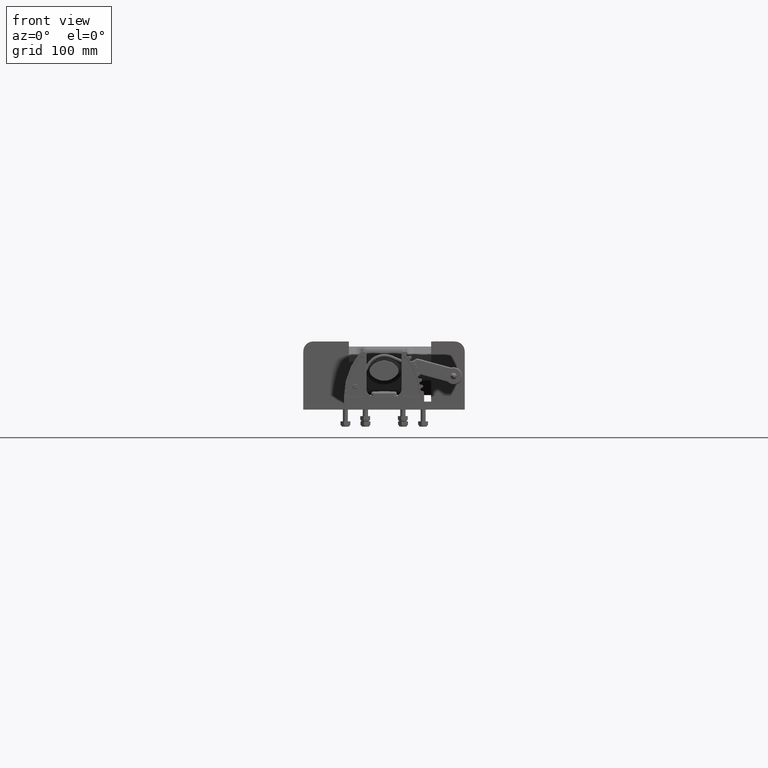
[diagram: clean part render]
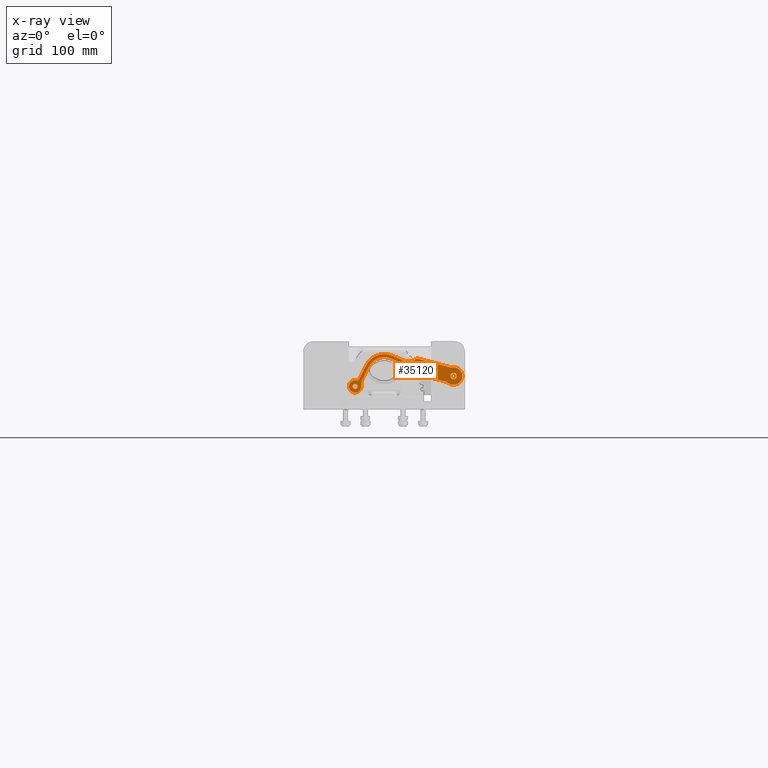
[diagram: x-ray — body ghosted, one internal face saturated and labeled with its STEP entity id]
A machine part, front view, then the same camera in x-ray: the body is ghosted and one INTERNAL B-rep face — a face not visible from any outside direction — is saturated and labeled: STEP entity #35120.
In plain terms, the highlighted planar face has unit normal (-0, -1, -0).
Its self-contained STEP definition (entity closure, byte-faithful):
#102 = FACE_OUTER_BOUND ( 'NONE', #41849, .T. ) ;
#103 = FACE_BOUND ( 'NONE', #41851, .T. ) ;
#105 = FACE_BOUND ( 'NONE', #41853, .T. ) ;
#107 = FACE_BOUND ( 'NONE', #41854, .T. ) ;
#1376 = PLANE ( 'NONE',  #51848 ) ;
#1380 = CARTESIAN_POINT ( 'NONE',  ( 0.0000000000000000000, 0.0000000000000000000, 0.0000000000000000000 ) ) ;
#1381 = DIRECTION ( 'NONE',  ( 0.0000000000000000000, 0.0000000000000000000, 1.000000000000000000 ) ) ;
#1382 = DIRECTION ( 'NONE',  ( 1.000000000000000000, 0.0000000000000000000, -0.0000000000000000000 ) ) ;
#4537 = VERTEX_POINT ( 'NONE', #17828 ) ;
#4538 = VERTEX_POINT ( 'NONE', #17829 ) ;
#4543 = VERTEX_POINT ( 'NONE', #17834 ) ;
#4552 = VERTEX_POINT ( 'NONE', #17843 ) ;
#12856 = EDGE_CURVE ( 'NONE', #39618, #39613, #49758, .T. ) ;
#12869 = EDGE_CURVE ( 'NONE', #39611, #39621, #49777, .T. ) ;
#12873 = EDGE_CURVE ( 'NONE', #39609, #39623, #49782, .T. ) ;
#12887 = EDGE_CURVE ( 'NONE', #39639, #39643, #49808, .T. ) ;
#12889 = EDGE_CURVE ( 'NONE', #39643, #39642, #49811, .T. ) ;
#12899 = EDGE_CURVE ( 'NONE', #39604, #39602, #49833, .T. ) ;
#12901 = EDGE_CURVE ( 'NONE', #39638, #39636, #49837, .T. ) ;
#12903 = EDGE_CURVE ( 'NONE', #39642, #39638, #49841, .T. ) ;
#12906 = EDGE_CURVE ( 'NONE', #39602, #39601, #49838, .T. ) ;
#12907 = EDGE_CURVE ( 'NONE', #39636, #39604, #49846, .T. ) ;
#12908 = EDGE_CURVE ( 'NONE', #39614, #39639, #49850, .T. ) ;
#12909 = EDGE_CURVE ( 'NONE', #39601, #39600, #49852, .T. ) ;
#12910 = EDGE_CURVE ( 'NONE', #39600, #39599, #49839, .T. ) ;
#12911 = EDGE_CURVE ( 'NONE', #39599, #39597, #49853, .T. ) ;
#12912 = EDGE_CURVE ( 'NONE', #39597, #39596, #49848, .T. ) ;
#12913 = EDGE_CURVE ( 'NONE', #39596, #39595, #49857, .T. ) ;
#12914 = EDGE_CURVE ( 'NONE', #39595, #39594, #49859, .T. ) ;
#12915 = EDGE_CURVE ( 'NONE', #39594, #39593, #49860, .T. ) ;
#12916 = EDGE_CURVE ( 'NONE', #39593, #39592, #49854, .T. ) ;
#12917 = EDGE_CURVE ( 'NONE', #39592, #39591, #49864, .T. ) ;
#12918 = EDGE_CURVE ( 'NONE', #39591, #4538, #49866, .T. ) ;
#12919 = EDGE_CURVE ( 'NONE', #4538, #4537, #49855, .T. ) ;
#12920 = EDGE_CURVE ( 'NONE', #4537, #4552, #49867, .T. ) ;
#12921 = EDGE_CURVE ( 'NONE', #4552, #4543, #49862, .T. ) ;
#12922 = EDGE_CURVE ( 'NONE', #4543, #39614, #49869, .T. ) ;
#12923 = EDGE_CURVE ( 'NONE', #39621, #39611, #49870, .T. ) ;
#12924 = EDGE_CURVE ( 'NONE', #39613, #39618, #49871, .T. ) ;
#12926 = EDGE_CURVE ( 'NONE', #39623, #39609, #49875, .T. ) ;
#17094 = ORIENTED_EDGE ( 'NONE', *, *, #12901, .T. ) ;
#17099 = ORIENTED_EDGE ( 'NONE', *, *, #12907, .T. ) ;
#17100 = ORIENTED_EDGE ( 'NONE', *, *, #12899, .T. ) ;
#17101 = ORIENTED_EDGE ( 'NONE', *, *, #12906, .T. ) ;
#17102 = ORIENTED_EDGE ( 'NONE', *, *, #12889, .T. ) ;
#17103 = ORIENTED_EDGE ( 'NONE', *, *, #12903, .T. ) ;
#17104 = ORIENTED_EDGE ( 'NONE', *, *, #12916, .T. ) ;
#17105 = ORIENTED_EDGE ( 'NONE', *, *, #12913, .T. ) ;
#17106 = ORIENTED_EDGE ( 'NONE', *, *, #12919, .T. ) ;
#17108 = ORIENTED_EDGE ( 'NONE', *, *, #12908, .T. ) ;
#17109 = ORIENTED_EDGE ( 'NONE', *, *, #12887, .T. ) ;
#17110 = ORIENTED_EDGE ( 'NONE', *, *, #12856, .F. ) ;
#17111 = ORIENTED_EDGE ( 'NONE', *, *, #12869, .F. ) ;
#17114 = ORIENTED_EDGE ( 'NONE', *, *, #12922, .T. ) ;
#17115 = ORIENTED_EDGE ( 'NONE', *, *, #12923, .F. ) ;
#17116 = ORIENTED_EDGE ( 'NONE', *, *, #12873, .F. ) ;
#17117 = ORIENTED_EDGE ( 'NONE', *, *, #12920, .T. ) ;
#17118 = ORIENTED_EDGE ( 'NONE', *, *, #12924, .F. ) ;
#17119 = ORIENTED_EDGE ( 'NONE', *, *, #12910, .T. ) ;
#17121 = ORIENTED_EDGE ( 'NONE', *, *, #12921, .T. ) ;
#17122 = ORIENTED_EDGE ( 'NONE', *, *, #12917, .T. ) ;
#17127 = ORIENTED_EDGE ( 'NONE', *, *, #12915, .T. ) ;
#17141 = ORIENTED_EDGE ( 'NONE', *, *, #12926, .F. ) ;
#17152 = ORIENTED_EDGE ( 'NONE', *, *, #12909, .T. ) ;
#17189 = ORIENTED_EDGE ( 'NONE', *, *, #12914, .T. ) ;
#17190 = ORIENTED_EDGE ( 'NONE', *, *, #12911, .T. ) ;
#17191 = ORIENTED_EDGE ( 'NONE', *, *, #12912, .T. ) ;
#17192 = ORIENTED_EDGE ( 'NONE', *, *, #12918, .T. ) ;
#17828 = CARTESIAN_POINT ( 'NONE',  ( 1.851240288347998400, 0.3803549797535765700, 1.365923996832131600E-016 ) ) ;
#17829 = CARTESIAN_POINT ( 'NONE',  ( 2.562500000000000000, 0.2746617627545026000, 1.365923996832131600E-016 ) ) ;
#17834 = CARTESIAN_POINT ( 'NONE',  ( 0.5651424792023397300, -1.137315315484215500, 1.365923996832131600E-016 ) ) ;
#17843 = CARTESIAN_POINT ( 'NONE',  ( 0.7146868159354151700, -0.4135909013739492200, 1.365923996832131600E-016 ) ) ;
#22658 = CARTESIAN_POINT ( 'NONE',  ( 3.028484908572962400, 0.5144324312177399600, 1.365923996832131600E-016 ) ) ;
#22660 = CARTESIAN_POINT ( 'NONE',  ( 3.127005977522338200, 0.5625000000000002200, 1.365923996832131600E-016 ) ) ;
#22662 = CARTESIAN_POINT ( 'NONE',  ( 4.804805898398895700, 0.5624999999999998900, 1.365923996832131600E-016 ) ) ;
#22664 = CARTESIAN_POINT ( 'NONE',  ( 4.862071254310252200, 0.5763888888888888400, 1.365923996832131600E-016 ) ) ;
#22666 = CARTESIAN_POINT ( 'NONE',  ( 4.862071254310252200, -0.2013888888888888100, 1.365923996832131600E-016 ) ) ;
#22668 = CARTESIAN_POINT ( 'NONE',  ( 4.804805898398895700, -0.1875000000000000800, 1.365923996832131600E-016 ) ) ;
#22670 = CARTESIAN_POINT ( 'NONE',  ( 3.234208584750654800, -0.1875000000000000600, 1.365923996832131600E-016 ) ) ;
#22673 = CARTESIAN_POINT ( 'NONE',  ( 2.927019829343439700, -0.08200610711542515000, 1.365923996832131600E-016 ) ) ;
#22675 = CARTESIAN_POINT ( 'NONE',  ( 2.721370042664140100, 0.07812652677885632800, 1.365923996832131600E-016 ) ) ;
#22676 = CARTESIAN_POINT ( 'NONE',  ( 2.644572853812336100, 0.1045000000000001900, 1.365923996832131600E-016 ) ) ;
#22678 = CARTESIAN_POINT ( 'NONE',  ( 1.828273722018075800, 0.2258020783540451700, 1.365923996832131600E-016 ) ) ;
#22682 = CARTESIAN_POINT ( 'NONE',  ( 0.8677042951441749100, -0.4452091485833831700, 1.365923996832131600E-016 ) ) ;
#22692 = CARTESIAN_POINT ( 'NONE',  ( 0.3304401961130530300, -1.576848098390637200, 0.0000000000000000000 ) ) ;
#22696 = CARTESIAN_POINT ( 'NONE',  ( 4.906249999999998200, 0.1874999999999999200, 0.0000000000000000000 ) ) ;
#22699 = CARTESIAN_POINT ( 'NONE',  ( 3.140499999999999800, 0.1874999999999999200, 0.0000000000000000000 ) ) ;
#22701 = CARTESIAN_POINT ( 'NONE',  ( 0.4229204446123912600, -1.266044759022581000, 1.365923996832131600E-016 ) ) ;
#22708 = CARTESIAN_POINT ( 'NONE',  ( 2.984499999999999700, 0.1874999999999999200, 0.0000000000000000000 ) ) ;
#22714 = CARTESIAN_POINT ( 'NONE',  ( 5.218750000000001800, 0.1874999999999999400, 0.0000000000000000000 ) ) ;
#22718 = CARTESIAN_POINT ( 'NONE',  ( 0.5804401961130530900, -1.576848098390637200, 0.0000000000000000000 ) ) ;
#22742 = CARTESIAN_POINT ( 'NONE',  ( 0.7181599584110993600, -1.168933562693649500, 1.365923996832131600E-016 ) ) ;
#22746 = CARTESIAN_POINT ( 'NONE',  ( 0.7078158918791294100, -1.270111953763838100, 0.0000000000000000000 ) ) ;
#22748 = CARTESIAN_POINT ( 'NONE',  ( 0.1429401961130530600, -1.576848098390637200, 0.0000000000000000000 ) ) ;
#22754 = CARTESIAN_POINT ( 'NONE',  ( 0.7448154637153900900, -1.458872658149560600, 1.365923996832131600E-016 ) ) ;
#22756 = CARTESIAN_POINT ( 'NONE',  ( 0.7679401961130530900, -1.576848098390637200, 0.0000000000000000000 ) ) ;
#35120 = ADVANCED_FACE ( 'NONE', ( #102, #103, #105, #107 ), #1376, .T. ) ;
#39591 = VERTEX_POINT ( 'NONE', #22658 ) ;
#39592 = VERTEX_POINT ( 'NONE', #22660 ) ;
#39593 = VERTEX_POINT ( 'NONE', #22662 ) ;
#39594 = VERTEX_POINT ( 'NONE', #22664 ) ;
#39595 = VERTEX_POINT ( 'NONE', #22666 ) ;
#39596 = VERTEX_POINT ( 'NONE', #22668 ) ;
#39597 = VERTEX_POINT ( 'NONE', #22670 ) ;
#39599 = VERTEX_POINT ( 'NONE', #22673 ) ;
#39600 = VERTEX_POINT ( 'NONE', #22675 ) ;
#39601 = VERTEX_POINT ( 'NONE', #22676 ) ;
#39602 = VERTEX_POINT ( 'NONE', #22678 ) ;
#39604 = VERTEX_POINT ( 'NONE', #22682 ) ;
#39609 = VERTEX_POINT ( 'NONE', #22692 ) ;
#39611 = VERTEX_POINT ( 'NONE', #22696 ) ;
#39613 = VERTEX_POINT ( 'NONE', #22699 ) ;
#39614 = VERTEX_POINT ( 'NONE', #22701 ) ;
#39618 = VERTEX_POINT ( 'NONE', #22708 ) ;
#39621 = VERTEX_POINT ( 'NONE', #22714 ) ;
#39623 = VERTEX_POINT ( 'NONE', #22718 ) ;
#39636 = VERTEX_POINT ( 'NONE', #22742 ) ;
#39638 = VERTEX_POINT ( 'NONE', #22746 ) ;
#39639 = VERTEX_POINT ( 'NONE', #22748 ) ;
#39642 = VERTEX_POINT ( 'NONE', #22754 ) ;
#39643 = VERTEX_POINT ( 'NONE', #22756 ) ;
#41849 = EDGE_LOOP ( 'NONE', ( #17108, #17109, #17102, #17103, #17094, #17099, #17100, #17101, #17152, #17119, #17190, #17191, #17105, #17189, #17127, #17104, #17122, #17192, #17106, #17117, #17121, #17114 ) ) ;
#41851 = EDGE_LOOP ( 'NONE', ( #17110, #17118 ) ) ;
#41853 = EDGE_LOOP ( 'NONE', ( #17111, #17115 ) ) ;
#41854 = EDGE_LOOP ( 'NONE', ( #17116, #17141 ) ) ;
#49758 = CIRCLE ( 'NONE', #51680, 0.07800000000000009700 ) ;
#49777 = CIRCLE ( 'NONE', #51688, 0.1562500000000019200 ) ;
#49782 = CIRCLE ( 'NONE', #51683, 0.1250000000000000300 ) ;
#49808 = CIRCLE ( 'NONE', #51694, 0.3125000000000000000 ) ;
#49811 = CIRCLE ( 'NONE', #51699, 0.3125000000000000000 ) ;
#49833 = CIRCLE ( 'NONE', #51703, 0.8528555670465993700 ) ;
#49837 = CIRCLE ( 'NONE', #51708, 0.5000000000000000000 ) ;
#49838 = LINE ( 'NONE', #53120, #49842 ) ;
#49839 = LINE ( 'NONE', #53130, #49849 ) ;
#49841 = CIRCLE ( 'NONE', #51706, 0.5000000000000000000 ) ;
#49842 = VECTOR ( 'NONE', #53121, 39.37007874015748100 ) ;
#49846 = LINE ( 'NONE', #53122, #49847 ) ;
#49847 = VECTOR ( 'NONE', #53123, 39.37007874015748100 ) ;
#49848 = LINE ( 'NONE', #53135, #49851 ) ;
#49849 = VECTOR ( 'NONE', #53131, 39.37007874015748100 ) ;
#49850 = CIRCLE ( 'NONE', #51711, 0.3125000000000000000 ) ;
#49851 = VECTOR ( 'NONE', #53136, 39.37007874015748100 ) ;
#49852 = CIRCLE ( 'NONE', #51712, 0.1249999999999999000 ) ;
#49853 = CIRCLE ( 'NONE', #51714, 0.5000000000000001100 ) ;
#49854 = LINE ( 'NONE', #53146, #49858 ) ;
#49855 = LINE ( 'NONE', #53154, #49863 ) ;
#49857 = CIRCLE ( 'NONE', #51715, 0.1249999999999999000 ) ;
#49858 = VECTOR ( 'NONE', #53147, 39.37007874015748100 ) ;
#49859 = CIRCLE ( 'NONE', #51713, 0.4374999999999998900 ) ;
#49860 = CIRCLE ( 'NONE', #51716, 0.1249999999999999000 ) ;
#49862 = LINE ( 'NONE', #53159, #49865 ) ;
#49863 = VECTOR ( 'NONE', #53155, 39.37007874015747400 ) ;
#49864 = CIRCLE ( 'NONE', #51718, 0.1249999999999999000 ) ;
#49865 = VECTOR ( 'NONE', #53160, 39.37007874015748900 ) ;
#49866 = CIRCLE ( 'NONE', #51717, 0.6250000000000000000 ) ;
#49867 = CIRCLE ( 'NONE', #51720, 1.009105567046599200 ) ;
#49869 = CIRCLE ( 'NONE', #51721, 0.1624932898991209000 ) ;
#49870 = CIRCLE ( 'NONE', #51719, 0.1562500000000019200 ) ;
#49871 = CIRCLE ( 'NONE', #51722, 0.07800000000000009700 ) ;
#49875 = CIRCLE ( 'NONE', #51724, 0.1250000000000000300 ) ;
#51680 = AXIS2_PLACEMENT_3D ( 'NONE', #52983, #52990, #52991 ) ;
#51683 = AXIS2_PLACEMENT_3D ( 'NONE', #53032, #53033, #53034 ) ;
#51688 = AXIS2_PLACEMENT_3D ( 'NONE', #53021, #53022, #53023 ) ;
#51694 = AXIS2_PLACEMENT_3D ( 'NONE', #53068, #53069, #53070 ) ;
#51699 = AXIS2_PLACEMENT_3D ( 'NONE', #53071, #53073, #53074 ) ;
#51703 = AXIS2_PLACEMENT_3D ( 'NONE', #53100, #53101, #53102 ) ;
#51706 = AXIS2_PLACEMENT_3D ( 'NONE', #53110, #53112, #53113 ) ;
#51708 = AXIS2_PLACEMENT_3D ( 'NONE', #53097, #53105, #53106 ) ;
#51711 = AXIS2_PLACEMENT_3D ( 'NONE', #53114, #53125, #53126 ) ;
#51712 = AXIS2_PLACEMENT_3D ( 'NONE', #53117, #53128, #53129 ) ;
#51713 = AXIS2_PLACEMENT_3D ( 'NONE', #53132, #53141, #53142 ) ;
#51714 = AXIS2_PLACEMENT_3D ( 'NONE', #53124, #53133, #53134 ) ;
#51715 = AXIS2_PLACEMENT_3D ( 'NONE', #53127, #53138, #53139 ) ;
#51716 = AXIS2_PLACEMENT_3D ( 'NONE', #53137, #53144, #53145 ) ;
#51717 = AXIS2_PLACEMENT_3D ( 'NONE', #53143, #53152, #53153 ) ;
#51718 = AXIS2_PLACEMENT_3D ( 'NONE', #53140, #53149, #53150 ) ;
#51719 = AXIS2_PLACEMENT_3D ( 'NONE', #53156, #53165, #53166 ) ;
#51720 = AXIS2_PLACEMENT_3D ( 'NONE', #53148, #53157, #53158 ) ;
#51721 = AXIS2_PLACEMENT_3D ( 'NONE', #53151, #53162, #53163 ) ;
#51722 = AXIS2_PLACEMENT_3D ( 'NONE', #53161, #53168, #53169 ) ;
#51724 = AXIS2_PLACEMENT_3D ( 'NONE', #53167, #53174, #53175 ) ;
#51848 = AXIS2_PLACEMENT_3D ( 'NONE', #1380, #1381, #1382 ) ;
#52983 = CARTESIAN_POINT ( 'NONE',  ( 3.062500000000000000, 0.1874999999999999200, 0.0000000000000000000 ) ) ;
#52990 = DIRECTION ( 'NONE',  ( 0.0000000000000000000, 0.0000000000000000000, 1.000000000000000000 ) ) ;
#52991 = DIRECTION ( 'NONE',  ( 1.000000000000000000, 0.0000000000000000000, 0.0000000000000000000 ) ) ;
#53021 = CARTESIAN_POINT ( 'NONE',  ( 5.062500000000000000, 0.1874999999999999200, 0.0000000000000000000 ) ) ;
#53022 = DIRECTION ( 'NONE',  ( 0.0000000000000000000, 0.0000000000000000000, 1.000000000000000000 ) ) ;
#53023 = DIRECTION ( 'NONE',  ( 1.000000000000000000, 0.0000000000000000000, 0.0000000000000000000 ) ) ;
#53032 = CARTESIAN_POINT ( 'NONE',  ( 0.4554401961130530900, -1.576848098390637200, 0.0000000000000000000 ) ) ;
#53033 = DIRECTION ( 'NONE',  ( 0.0000000000000000000, 0.0000000000000000000, 1.000000000000000000 ) ) ;
#53034 = DIRECTION ( 'NONE',  ( 1.000000000000000000, 0.0000000000000000000, 0.0000000000000000000 ) ) ;
#53068 = CARTESIAN_POINT ( 'NONE',  ( 0.4554401961130530900, -1.576848098390637200, 0.0000000000000000000 ) ) ;
#53069 = DIRECTION ( 'NONE',  ( 0.0000000000000000000, 0.0000000000000000000, 1.000000000000000000 ) ) ;
#53070 = DIRECTION ( 'NONE',  ( 1.000000000000000000, 0.0000000000000000000, 0.0000000000000000000 ) ) ;
#53071 = CARTESIAN_POINT ( 'NONE',  ( 0.4554401961130530900, -1.576848098390637200, 0.0000000000000000000 ) ) ;
#53073 = DIRECTION ( 'NONE',  ( 0.0000000000000000000, 0.0000000000000000000, 1.000000000000000000 ) ) ;
#53074 = DIRECTION ( 'NONE',  ( 1.000000000000000000, 0.0000000000000000000, 0.0000000000000000000 ) ) ;
#53097 = CARTESIAN_POINT ( 'NONE',  ( 1.207815891879129300, -1.270111953763838100, 0.0000000000000000000 ) ) ;
#53100 = CARTESIAN_POINT ( 'NONE',  ( 1.702915872735392400, -0.6177902567614397300, 0.0000000000000000000 ) ) ;
#53101 = DIRECTION ( 'NONE',  ( -0.0000000000000000000, -0.0000000000000000000, -1.000000000000000000 ) ) ;
#53102 = DIRECTION ( 'NONE',  ( 1.000000000000000000, 0.0000000000000000000, 0.0000000000000000000 ) ) ;
#53105 = DIRECTION ( 'NONE',  ( -0.0000000000000000000, -0.0000000000000000000, -1.000000000000000000 ) ) ;
#53106 = DIRECTION ( 'NONE',  ( 1.000000000000000000, 0.0000000000000000000, 0.0000000000000000000 ) ) ;
#53110 = CARTESIAN_POINT ( 'NONE',  ( 1.207815891879129300, -1.270111953763838100, 0.0000000000000000000 ) ) ;
#53112 = DIRECTION ( 'NONE',  ( -0.0000000000000000000, -0.0000000000000000000, -1.000000000000000000 ) ) ;
#53113 = DIRECTION ( 'NONE',  ( 1.000000000000000000, 3.824587191129968100E-015, 0.0000000000000000000 ) ) ;
#53114 = CARTESIAN_POINT ( 'NONE',  ( 0.4554401961130530900, -1.576848098390637200, 0.0000000000000000000 ) ) ;
#53117 = CARTESIAN_POINT ( 'NONE',  ( 2.644572853812336100, -0.02049999999999994200, 0.0000000000000000000 ) ) ;
#53120 = CARTESIAN_POINT ( 'NONE',  ( 2.644572853812336100, 0.1045000000000000400, 0.0000000000000000000 ) ) ;
#53121 = DIRECTION ( 'NONE',  ( 0.9891385689570009200, -0.1469860245115035300, 0.0000000000000000000 ) ) ;
#53122 = CARTESIAN_POINT ( 'NONE',  ( 0.7181599584110993600, -1.168933562693649500, 0.0000000000000000000 ) ) ;
#53123 = DIRECTION ( 'NONE',  ( 0.2023567821403770800, 0.9793118669360603200, 0.0000000000000000000 ) ) ;
#53124 = CARTESIAN_POINT ( 'NONE',  ( 3.234208584750652500, 0.3125000000000000000, 0.0000000000000000000 ) ) ;
#53125 = DIRECTION ( 'NONE',  ( 0.0000000000000000000, 0.0000000000000000000, 1.000000000000000000 ) ) ;
#53126 = DIRECTION ( 'NONE',  ( 1.000000000000000000, 0.0000000000000000000, 0.0000000000000000000 ) ) ;
#53127 = CARTESIAN_POINT ( 'NONE',  ( 4.804805898398895700, -0.3125000000000001700, 0.0000000000000000000 ) ) ;
#53128 = DIRECTION ( 'NONE',  ( -0.0000000000000000000, -0.0000000000000000000, -1.000000000000000000 ) ) ;
#53129 = DIRECTION ( 'NONE',  ( 1.000000000000000000, -3.551402391763545100E-015, 0.0000000000000000000 ) ) ;
#53130 = CARTESIAN_POINT ( 'NONE',  ( 2.721370042664140100, 0.07812652677885632800, 0.0000000000000000000 ) ) ;
#53131 = DIRECTION ( 'NONE',  ( 0.7890122142308524400, -0.6143775108144238200, 0.0000000000000000000 ) ) ;
#53132 = CARTESIAN_POINT ( 'NONE',  ( 5.062500000000000000, 0.1874999999999999200, 0.0000000000000000000 ) ) ;
#53133 = DIRECTION ( 'NONE',  ( 0.0000000000000000000, 0.0000000000000000000, 1.000000000000000000 ) ) ;
#53134 = DIRECTION ( 'NONE',  ( 1.000000000000000000, 0.0000000000000000000, 0.0000000000000000000 ) ) ;
#53135 = CARTESIAN_POINT ( 'NONE',  ( 3.234208584750654800, -0.1875000000000000600, 0.0000000000000000000 ) ) ;
#53136 = DIRECTION ( 'NONE',  ( 1.000000000000000000, -4.348422046066390200E-017, 0.0000000000000000000 ) ) ;
#53137 = CARTESIAN_POINT ( 'NONE',  ( 4.804805898398895700, 0.6875000000000000000, 0.0000000000000000000 ) ) ;
#53138 = DIRECTION ( 'NONE',  ( -0.0000000000000000000, -0.0000000000000000000, -1.000000000000000000 ) ) ;
#53139 = DIRECTION ( 'NONE',  ( 1.000000000000000000, -1.639108796198559100E-015, 0.0000000000000000000 ) ) ;
#53140 = CARTESIAN_POINT ( 'NONE',  ( 3.127005977522338200, 0.4375000000000001700, 0.0000000000000000000 ) ) ;
#53141 = DIRECTION ( 'NONE',  ( 0.0000000000000000000, 0.0000000000000000000, 1.000000000000000000 ) ) ;
#53142 = DIRECTION ( 'NONE',  ( 1.000000000000000000, 0.0000000000000000000, 0.0000000000000000000 ) ) ;
#53143 = CARTESIAN_POINT ( 'NONE',  ( 2.535879563826081800, 0.8990945873064399900, 0.0000000000000000000 ) ) ;
#53144 = DIRECTION ( 'NONE',  ( -0.0000000000000000000, -0.0000000000000000000, -1.000000000000000000 ) ) ;
#53145 = DIRECTION ( 'NONE',  ( 1.000000000000000000, -1.092739197465706100E-015, 0.0000000000000000000 ) ) ;
#53146 = CARTESIAN_POINT ( 'NONE',  ( 3.127005977522338200, 0.5625000000000002200, 0.0000000000000000000 ) ) ;
#53147 = DIRECTION ( 'NONE',  ( -1.000000000000000000, 1.628232281854575500E-016, 0.0000000000000000000 ) ) ;
#53148 = CARTESIAN_POINT ( 'NONE',  ( 1.702915872735392400, -0.6177902567614397300, 0.0000000000000000000 ) ) ;
#53149 = DIRECTION ( 'NONE',  ( 0.0000000000000000000, 0.0000000000000000000, 1.000000000000000000 ) ) ;
#53150 = DIRECTION ( 'NONE',  ( 1.000000000000000000, 0.0000000000000000000, 0.0000000000000000000 ) ) ;
#53151 = CARTESIAN_POINT ( 'NONE',  ( 0.4060108721066491600, -1.104433696220825900, 0.0000000000000000000 ) ) ;
#53152 = DIRECTION ( 'NONE',  ( -0.0000000000000000000, -0.0000000000000000000, -1.000000000000000000 ) ) ;
#53153 = DIRECTION ( 'NONE',  ( 1.000000000000000000, -8.741913579725642300E-016, 0.0000000000000000000 ) ) ;
#53154 = CARTESIAN_POINT ( 'NONE',  ( 1.851240288347998400, 0.3803549797535765700, 0.0000000000000000000 ) ) ;
#53155 = DIRECTION ( 'NONE',  ( -0.9891385689570010300, 0.1469860245115031900, 0.0000000000000000000 ) ) ;
#53156 = CARTESIAN_POINT ( 'NONE',  ( 5.062500000000000000, 0.1874999999999999200, 0.0000000000000000000 ) ) ;
#53157 = DIRECTION ( 'NONE',  ( 0.0000000000000000000, 0.0000000000000000000, 1.000000000000000000 ) ) ;
#53158 = DIRECTION ( 'NONE',  ( 1.000000000000000000, 0.0000000000000000000, 0.0000000000000000000 ) ) ;
#53159 = CARTESIAN_POINT ( 'NONE',  ( 0.5651424792023397300, -1.137315315484215500, 0.0000000000000000000 ) ) ;
#53160 = DIRECTION ( 'NONE',  ( -0.2023567821403768600, -0.9793118669360603200, 0.0000000000000000000 ) ) ;
#53161 = CARTESIAN_POINT ( 'NONE',  ( 3.062500000000000000, 0.1874999999999999200, 0.0000000000000000000 ) ) ;
#53162 = DIRECTION ( 'NONE',  ( -0.0000000000000000000, -0.0000000000000000000, -1.000000000000000000 ) ) ;
#53163 = DIRECTION ( 'NONE',  ( 1.000000000000000000, 8.406033244081184400E-016, 0.0000000000000000000 ) ) ;
#53165 = DIRECTION ( 'NONE',  ( 0.0000000000000000000, 0.0000000000000000000, 1.000000000000000000 ) ) ;
#53166 = DIRECTION ( 'NONE',  ( 1.000000000000000000, 0.0000000000000000000, 0.0000000000000000000 ) ) ;
#53167 = CARTESIAN_POINT ( 'NONE',  ( 0.4554401961130530900, -1.576848098390637200, 0.0000000000000000000 ) ) ;
#53168 = DIRECTION ( 'NONE',  ( 0.0000000000000000000, 0.0000000000000000000, 1.000000000000000000 ) ) ;
#53169 = DIRECTION ( 'NONE',  ( 1.000000000000000000, 0.0000000000000000000, 0.0000000000000000000 ) ) ;
#53174 = DIRECTION ( 'NONE',  ( 0.0000000000000000000, 0.0000000000000000000, 1.000000000000000000 ) ) ;
#53175 = DIRECTION ( 'NONE',  ( 1.000000000000000000, 0.0000000000000000000, 0.0000000000000000000 ) ) ;